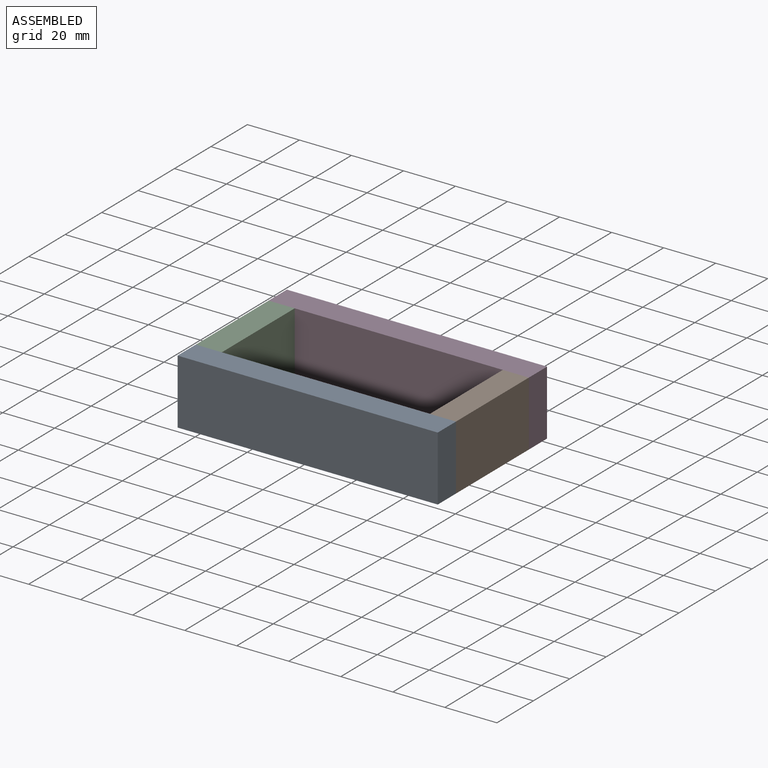
[diagram: assembled view]
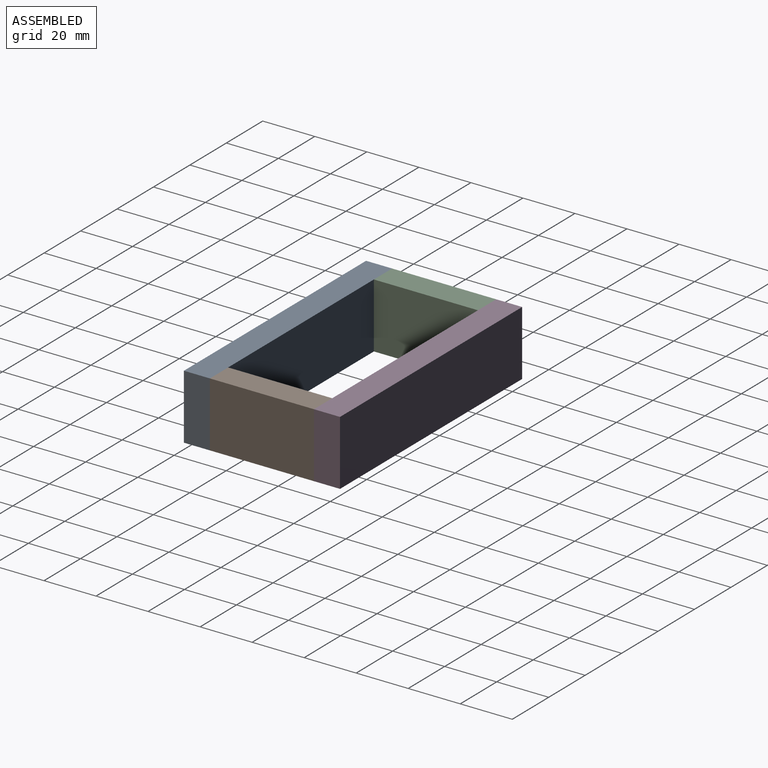
[diagram: assembled view, second angle]
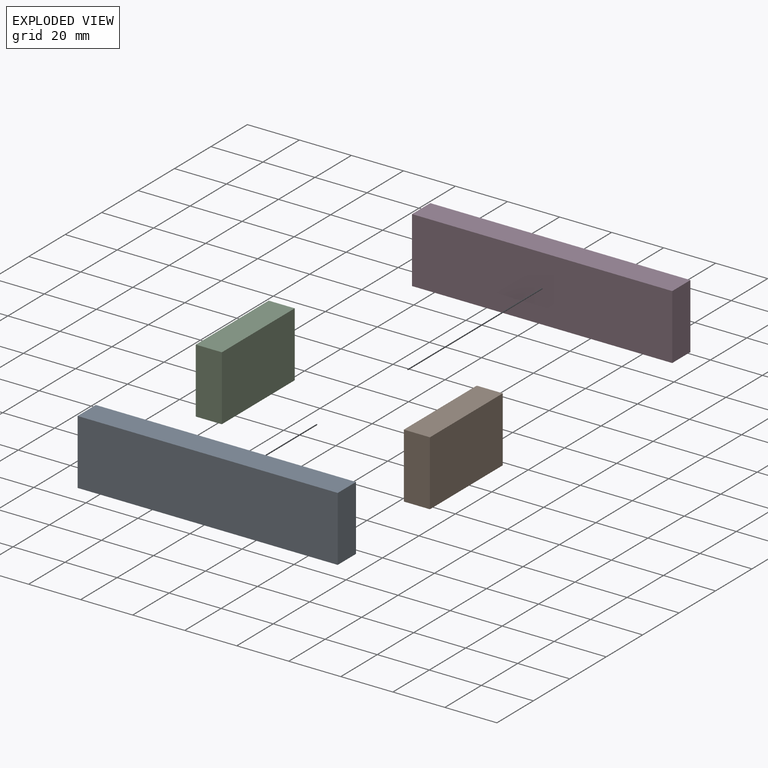
[diagram: exploded view]
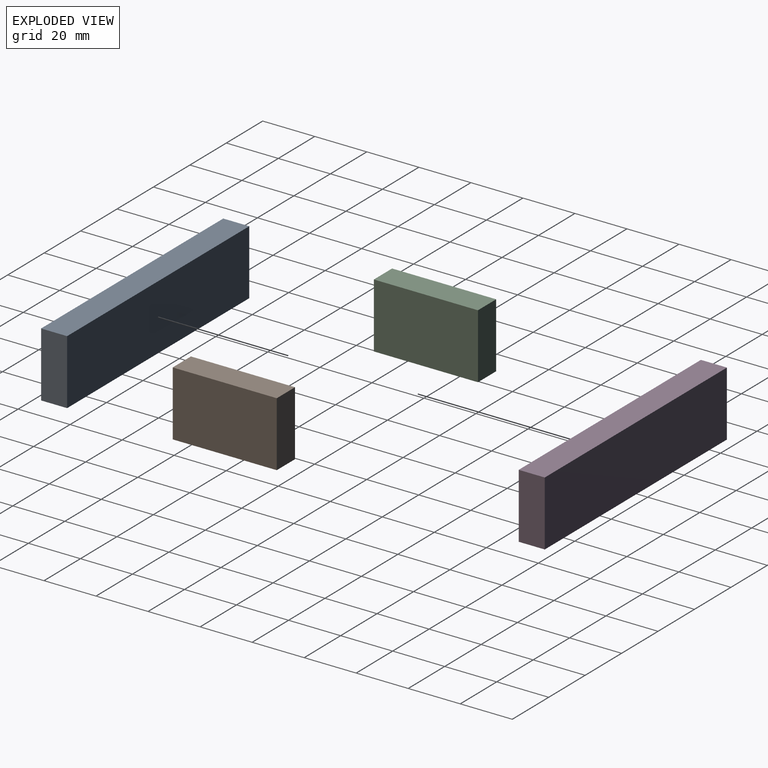
[diagram: exploded view, second angle]
ASSEMBLY  parts=4 mates=3
PART A: 6 faces, bbox 100x10x25 mm
  f0: plane 100x10mm, normal (0,0,1), area 1000mm2, adj f1,f3,f4,f5
  f1: plane 25x10mm, normal (-1,0,0), area 250mm2, adj f0,f2,f4,f5
  f2: plane 100x10mm, normal (0,0,-1), area 1000mm2, adj f1,f3,f4,f5
  f3: plane 25x10mm, normal (1,0,0), area 250mm2, adj f0,f2,f4,f5
  f4: plane 100x25mm, normal (0,-1,0), area 2500mm2, adj f0,f1,f2,f3
  f5: plane 100x25mm, normal (0,1,0), area 2500mm2, adj f0,f1,f2,f3
PART B: 6 faces, bbox 40x10x25 mm
  f0: plane 40x10mm, normal (0,0,1), area 400mm2, adj f1,f3,f4,f5
  f1: plane 25x10mm, normal (-1,0,0), area 250mm2, adj f0,f2,f4,f5
  f2: plane 40x10mm, normal (0,0,-1), area 400mm2, adj f1,f3,f4,f5
  f3: plane 25x10mm, normal (1,0,0), area 250mm2, adj f0,f2,f4,f5
  f4: plane 40x25mm, normal (0,-1,0), area 1000mm2, adj f0,f1,f2,f3
  f5: plane 40x25mm, normal (0,1,0), area 1000mm2, adj f0,f1,f2,f3
PART C: same geometry as B
PART D: same geometry as A
PLACE A t=(-11.64,-30.65,24.8)mm
PLACE B rot(axis=(0.71,0.71,0),180deg) t=(33.7,2.38,10.13)mm
PLACE C rot(axis=(0,0,-1),90deg) t=(-56.3,-23.68,-58.83)mm
PLACE D rot(axis=(1,0,0),180deg) t=(-11.64,9.35,-73.51)mm
MATE fastened A.f5 <-> B.f1  axis (0,1,0) through (33.7,-30.65,-24.35)mm
MATE fastened C.f1 <-> D.f5  axis (0,1,0) through (-66.3,9.35,-24.35)mm
MATE fastened B.f3 <-> D.f5  axis (0,1,0) through (33.7,9.35,-24.35)mm
